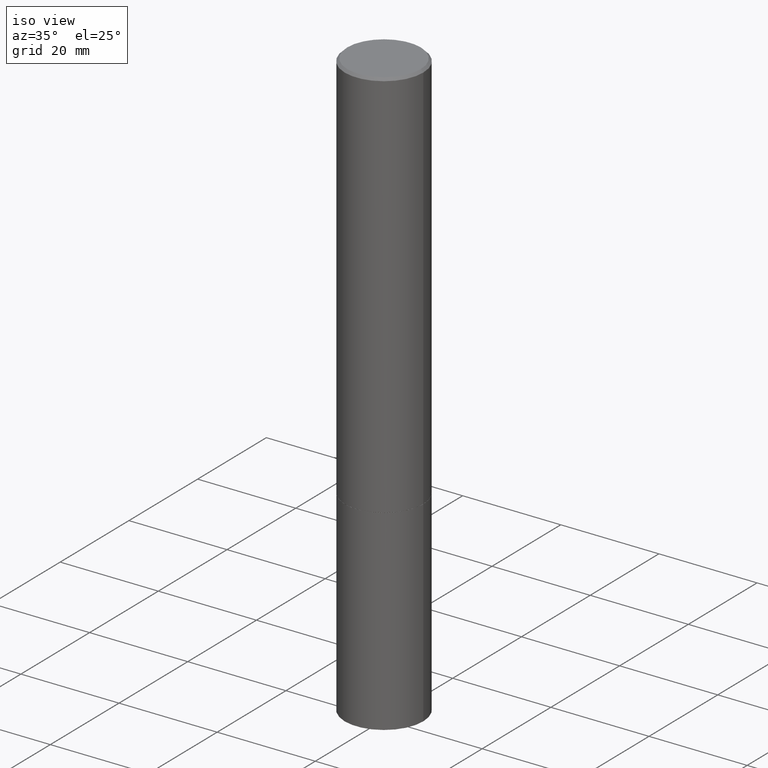
[diagram: clean part render]
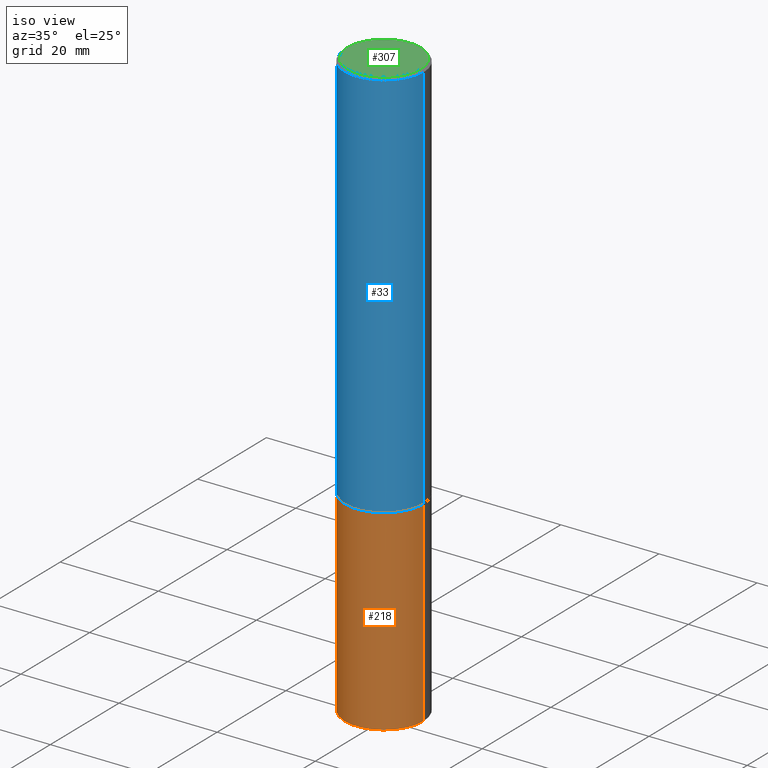
[diagram: same view with three faces highlighted in distinct colors, each labeled with its STEP entity id]
A machine part, iso view with three faces highlighted in distinct colors.
Their STEP definitions:

[orange] entity #218 — the highlighted cylindrical surface (partial cylindrical patch) has radius 7.9997 mm, axis along (-0, 0, 1).
#8 = CARTESIAN_POINT ( 'NONE',  ( 0.3149500000000000077, -2.199284095337289871E-15, 1.535751875536930130E-29 ) ) ;
#13 = ORIENTED_EDGE ( 'NONE', *, *, #243, .T. ) ;
#21 = DIRECTION ( 'NONE',  ( -2.445468806185136597E-29, 3.491481338843145583E-15, 1.000000000000000000 ) ) ;
#23 = DIRECTION ( 'NONE',  ( 1.000000000000000000, -6.982962677686263555E-15, 0.000000000000000000 ) ) ;
#69 = LINE ( 'NONE', #8, #127 ) ;
#82 = ORIENTED_EDGE ( 'NONE', *, *, #172, .F. ) ;
#88 = CARTESIAN_POINT ( 'NONE',  ( -0.3149500000000000077, -1.150810768474902901E-14, -4.724400000000000155 ) ) ;
#104 = ORIENTED_EDGE ( 'NONE', *, *, #266, .T. ) ;
#118 = LINE ( 'NONE', #287, #347 ) ;
#122 = DIRECTION ( 'NONE',  ( 1.000000000000000000, -6.982962677686266711E-15, 4.876176775795936353E-29 ) ) ;
#127 = VECTOR ( 'NONE', #341, 39.37007874015748143 ) ;
#146 = CARTESIAN_POINT ( 'NONE',  ( 0.3149500000000000077, -1.319605372015765902E-14, -3.149599999999999511 ) ) ;
#149 = CARTESIAN_POINT ( 'NONE',  ( 1.155337282794105951E-28, -1.649515443723055925E-14, -4.724400000000000155 ) ) ;
#164 = CIRCLE ( 'NONE', #233, 0.3149500000000000077 ) ;
#172 = EDGE_CURVE ( 'NONE', #211, #269, #164, .T. ) ;
#178 = CARTESIAN_POINT ( 'NONE',  ( 0.000000000000000000, 0.000000000000000000, 0.000000000000000000 ) ) ;
#181 = EDGE_LOOP ( 'NONE', ( #356, #104, #13, #82 ) ) ;
#206 = DIRECTION ( 'NONE',  ( 1.000000000000000000, -6.982962677686263555E-15, 0.000000000000000000 ) ) ;
#211 = VERTEX_POINT ( 'NONE', #308 ) ;
#212 = VERTEX_POINT ( 'NONE', #88 ) ;
#218 = ADVANCED_FACE ( 'NONE', ( #286 ), #265, .T. ) ;
#233 = AXIS2_PLACEMENT_3D ( 'NONE', #279, #21, #23 ) ;
#234 = CARTESIAN_POINT ( 'NONE',  ( 0.3149500000000000077, -1.869443853256784755E-14, -4.724400000000000155 ) ) ;
#243 = EDGE_CURVE ( 'NONE', #244, #269, #69, .T. ) ;
#244 = VERTEX_POINT ( 'NONE', #234 ) ;
#254 = EDGE_CURVE ( 'NONE', #212, #211, #118, .T. ) ;
#260 = DIRECTION ( 'NONE',  ( -2.445468806185136597E-29, 3.491481338843145583E-15, 1.000000000000000000 ) ) ;
#263 = AXIS2_PLACEMENT_3D ( 'NONE', #149, #291, #206 ) ;
#265 = CYLINDRICAL_SURFACE ( 'NONE', #326, 0.3149500000000000077 ) ;
#266 = EDGE_CURVE ( 'NONE', #212, #244, #364, .T. ) ;
#269 = VERTEX_POINT ( 'NONE', #146 ) ;
#279 = CARTESIAN_POINT ( 'NONE',  ( 7.702248551960704469E-29, -1.099676962482037073E-14, -3.149599999999999511 ) ) ;
#286 = FACE_OUTER_BOUND ( 'NONE', #181, .T. ) ;
#287 = CARTESIAN_POINT ( 'NONE',  ( -0.3149500000000000077, 2.237854346276435590E-15, -1.549218606675782676E-29 ) ) ;
#291 = DIRECTION ( 'NONE',  ( -2.445468806185136597E-29, 3.491481338843145583E-15, 1.000000000000000000 ) ) ;
#308 = CARTESIAN_POINT ( 'NONE',  ( -0.3149500000000000077, -1.150810768474902901E-14, -3.149599999999999511 ) ) ;
#312 = DIRECTION ( 'NONE',  ( -2.445468806185136877E-29, 3.491481338843145188E-15, 1.000000000000000000 ) ) ;
#326 = AXIS2_PLACEMENT_3D ( 'NONE', #178, #260, #122 ) ;
#341 = DIRECTION ( 'NONE',  ( -2.445468806185136877E-29, 3.491481338843145188E-15, 1.000000000000000000 ) ) ;
#347 = VECTOR ( 'NONE', #312, 39.37007874015748143 ) ;
#356 = ORIENTED_EDGE ( 'NONE', *, *, #254, .F. ) ;
#364 = CIRCLE ( 'NONE', #263, 0.3149500000000000077 ) ;

[blue] entity #33 — the highlighted cylindrical surface (partial cylindrical patch) has radius 7.9997 mm, axis along (-0, 0, 1).
#33 = ADVANCED_FACE ( 'NONE', ( #145 ), #332, .T. ) ;
#38 = LINE ( 'NONE', #350, #39 ) ;
#39 = VECTOR ( 'NONE', #202, 39.37007874015748143 ) ;
#49 = ORIENTED_EDGE ( 'NONE', *, *, #96, .F. ) ;
#55 = DIRECTION ( 'NONE',  ( -2.445468806185136597E-29, 3.491481338843145583E-15, 1.000000000000000000 ) ) ;
#84 = CARTESIAN_POINT ( 'NONE',  ( 0.3149499999999997857, -2.199284095337288293E-15, 1.535751875536929009E-29 ) ) ;
#90 = EDGE_CURVE ( 'NONE', #129, #300, #353, .T. ) ;
#96 = EDGE_CURVE ( 'NONE', #271, #238, #198, .T. ) ;
#109 = EDGE_CURVE ( 'NONE', #300, #238, #255, .T. ) ;
#117 = DIRECTION ( 'NONE',  ( 1.000000000000000000, -6.982962677686269866E-15, 0.000000000000000000 ) ) ;
#124 = CARTESIAN_POINT ( 'NONE',  ( 0.3149499999999996191, -2.230543471175004294E-15, -0.02000000000000006981 ) ) ;
#129 = VERTEX_POINT ( 'NONE', #247 ) ;
#137 = DIRECTION ( 'NONE',  ( -2.445468806185136597E-29, 3.491481338843145583E-15, 1.000000000000000000 ) ) ;
#145 = FACE_OUTER_BOUND ( 'NONE', #241, .T. ) ;
#173 = CARTESIAN_POINT ( 'NONE',  ( 0.3149500000000000077, -1.319256223881881917E-14, -3.148600000000000065 ) ) ;
#185 = ORIENTED_EDGE ( 'NONE', *, *, #277, .F. ) ;
#190 = DIRECTION ( 'NONE',  ( -2.445468806185136877E-29, 3.491481338843145188E-15, 1.000000000000000000 ) ) ;
#192 = VECTOR ( 'NONE', #190, 39.37007874015748143 ) ;
#193 = DIRECTION ( 'NONE',  ( 1.000000000000000000, -6.982962677686266711E-15, 4.876176775795935793E-29 ) ) ;
#195 = CARTESIAN_POINT ( 'NONE',  ( 4.890937612370289799E-31, -6.982962677686315028E-17, -0.02000000000000006981 ) ) ;
#198 = CIRCLE ( 'NONE', #214, 0.3149499999999996191 ) ;
#202 = DIRECTION ( 'NONE',  ( -2.445468806185136877E-29, 3.491481338843145188E-15, 1.000000000000000000 ) ) ;
#209 = AXIS2_PLACEMENT_3D ( 'NONE', #223, #137, #117 ) ;
#214 = AXIS2_PLACEMENT_3D ( 'NONE', #195, #55, #311 ) ;
#223 = CARTESIAN_POINT ( 'NONE',  ( 7.699803083154521108E-29, -1.099327814348152772E-14, -3.148600000000000065 ) ) ;
#238 = VERTEX_POINT ( 'NONE', #124 ) ;
#241 = EDGE_LOOP ( 'NONE', ( #185, #324, #325, #49 ) ) ;
#247 = CARTESIAN_POINT ( 'NONE',  ( -0.3149500000000000077, -3.293699538852755977E-15, -3.148600000000000065 ) ) ;
#255 = LINE ( 'NONE', #84, #192 ) ;
#256 = CARTESIAN_POINT ( 'NONE',  ( -0.3149499999999996191, 2.129454468560423812E-15, -0.02000000000000006981 ) ) ;
#262 = AXIS2_PLACEMENT_3D ( 'NONE', #330, #306, #193 ) ;
#271 = VERTEX_POINT ( 'NONE', #256 ) ;
#277 = EDGE_CURVE ( 'NONE', #129, #271, #38, .T. ) ;
#300 = VERTEX_POINT ( 'NONE', #173 ) ;
#306 = DIRECTION ( 'NONE',  ( -2.445468806185136597E-29, 3.491481338843145583E-15, 1.000000000000000000 ) ) ;
#311 = DIRECTION ( 'NONE',  ( 1.000000000000000000, -6.982962677686265922E-15, 0.000000000000000000 ) ) ;
#324 = ORIENTED_EDGE ( 'NONE', *, *, #90, .T. ) ;
#325 = ORIENTED_EDGE ( 'NONE', *, *, #109, .T. ) ;
#330 = CARTESIAN_POINT ( 'NONE',  ( 0.000000000000000000, 0.000000000000000000, 0.000000000000000000 ) ) ;
#332 = CYLINDRICAL_SURFACE ( 'NONE', #262, 0.3149499999999997857 ) ;
#350 = CARTESIAN_POINT ( 'NONE',  ( -0.3149499999999997857, 2.237854346276434013E-15, -1.549218606675781555E-29 ) ) ;
#353 = CIRCLE ( 'NONE', #209, 0.3149500000000000077 ) ;

[green] entity #307 — the highlighted planar face has unit normal (0, -0, -1).
#29 = EDGE_CURVE ( 'NONE', #103, #108, #186, .T. ) ;
#32 = DIRECTION ( 'NONE',  ( 2.438088387897960049E-29, -3.491481338843145188E-15, -1.000000000000000000 ) ) ;
#37 = CIRCLE ( 'NONE', #67, 0.2949499999999996014 ) ;
#44 = ORIENTED_EDGE ( 'NONE', *, *, #200, .T. ) ;
#67 = AXIS2_PLACEMENT_3D ( 'NONE', #336, #196, #89 ) ;
#89 = DIRECTION ( 'NONE',  ( 1.000000000000000000, -6.982962677686265922E-15, 4.876053491004741073E-29 ) ) ;
#100 = DIRECTION ( 'NONE',  ( -1.000000000000000000, 6.982962677686265922E-15, -4.876176775795935793E-29 ) ) ;
#102 = EDGE_LOOP ( 'NONE', ( #225, #44 ) ) ;
#103 = VERTEX_POINT ( 'NONE', #366 ) ;
#108 = VERTEX_POINT ( 'NONE', #168 ) ;
#120 = CARTESIAN_POINT ( 'NONE',  ( 2.059624841783561302E-15, 0.2949499999999996014, -1.025543908401683972E-15 ) ) ;
#143 = DIRECTION ( 'NONE',  ( 1.000000000000000000, -6.982962677686265922E-15, 4.876053491004741073E-29 ) ) ;
#151 = PLANE ( 'NONE',  #169 ) ;
#152 = AXIS2_PLACEMENT_3D ( 'NONE', #226, #252, #143 ) ;
#168 = CARTESIAN_POINT ( 'NONE',  ( 0.2949499999999996014, -2.127023677808857314E-15, 8.537024980215462707E-18 ) ) ;
#169 = AXIS2_PLACEMENT_3D ( 'NONE', #120, #32, #100 ) ;
#186 = CIRCLE ( 'NONE', #152, 0.2949499999999996014 ) ;
#196 = DIRECTION ( 'NONE',  ( -2.445468806185136597E-29, 3.491481338843145583E-15, 1.000000000000000000 ) ) ;
#200 = EDGE_CURVE ( 'NONE', #108, #103, #37, .T. ) ;
#225 = ORIENTED_EDGE ( 'NONE', *, *, #29, .T. ) ;
#226 = CARTESIAN_POINT ( 'NONE',  ( -2.087702828670439639E-46, 2.980686340760894400E-32, 8.537024980200822558E-18 ) ) ;
#252 = DIRECTION ( 'NONE',  ( -2.445468806185136597E-29, 3.491481338843145583E-15, 1.000000000000000000 ) ) ;
#307 = ADVANCED_FACE ( 'NONE', ( #342 ), #151, .F. ) ;
#336 = CARTESIAN_POINT ( 'NONE',  ( -2.087702828670439639E-46, 2.980686340760894400E-32, 8.537024980200822558E-18 ) ) ;
#342 = FACE_OUTER_BOUND ( 'NONE', #102, .T. ) ;
#366 = CARTESIAN_POINT ( 'NONE',  ( -0.2949499999999996014, 2.094539655171992557E-15, 8.537024980186296424E-18 ) ) ;